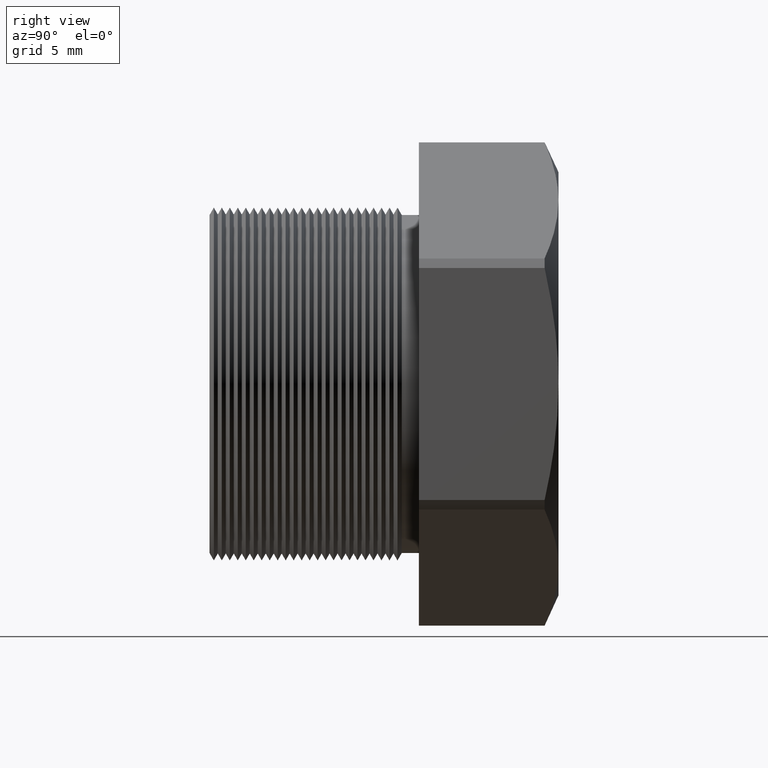
[diagram: clean part render]
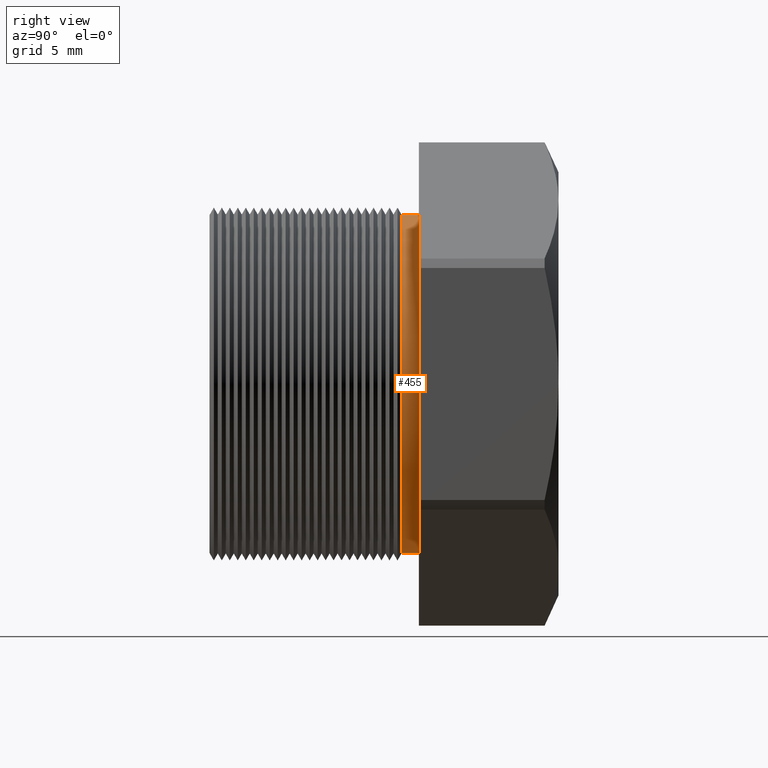
[diagram: same view with one face highlighted and labeled with its STEP entity id]
A machine part, right view. The second image highlights one B-rep face of the part: STEP entity #455.
In plain terms, the highlighted cylindrical surface (partial cylindrical patch) has radius 8.001 mm, axis along (-0, -1, -0).
Its self-contained STEP definition (entity closure, byte-faithful):
#377 = VERTEX_POINT ( 'NONE', #7280 ) ;
#378 = EDGE_CURVE ( 'NONE', #402, #377, #7278, .T. ) ;
#402 = VERTEX_POINT ( 'NONE', #7363 ) ;
#455 = ADVANCED_FACE ( 'NONE', ( #7452 ), #7444, .T. ) ;
#477 = EDGE_CURVE ( 'NONE', #483, #377, #7464, .T. ) ;
#478 = ORIENTED_EDGE ( 'NONE', *, *, #378, .F. ) ;
#479 = ORIENTED_EDGE ( 'NONE', *, *, #482, .F. ) ;
#481 = ORIENTED_EDGE ( 'NONE', *, *, #490, .T. ) ;
#482 = EDGE_CURVE ( 'NONE', #503, #402, #7525, .T. ) ;
#483 = VERTEX_POINT ( 'NONE', #7521 ) ;
#490 = EDGE_CURVE ( 'NONE', #503, #483, #7514, .T. ) ;
#503 = VERTEX_POINT ( 'NONE', #7537 ) ;
#504 = ORIENTED_EDGE ( 'NONE', *, *, #477, .T. ) ;
#1006 = EDGE_LOOP ( 'NONE', ( #481, #504, #478, #479 ) ) ;
#7274 = DIRECTION ( 'NONE',  ( 0.0000000000000000000, 0.0000000000000000000, -1.000000000000000000 ) ) ;
#7275 = DIRECTION ( 'NONE',  ( 0.0000000000000000000, -1.000000000000000000, 0.0000000000000000000 ) ) ;
#7276 = CARTESIAN_POINT ( 'NONE',  ( 0.0000000000000000000, 0.1155072448100089000, 0.0000000000000000000 ) ) ;
#7277 = AXIS2_PLACEMENT_3D ( 'NONE', #7276, #7275, #7274 ) ;
#7278 = CIRCLE ( 'NONE', #7277, 0.3150000000000000000 ) ;
#7280 = CARTESIAN_POINT ( 'NONE',  ( 3.857637417314162700E-017, 0.1155072448100089000, 0.3150000000000000000 ) ) ;
#7363 = CARTESIAN_POINT ( 'NONE',  ( 0.0000000000000000000, 0.1155072448100089000, -0.3150000000000000000 ) ) ;
#7441 = DIRECTION ( 'NONE',  ( 0.0000000000000000000, 0.0000000000000000000, -1.000000000000000000 ) ) ;
#7442 = DIRECTION ( 'NONE',  ( -0.0000000000000000000, -1.000000000000000000, -0.0000000000000000000 ) ) ;
#7443 = AXIS2_PLACEMENT_3D ( 'NONE', #7446, #7442, #7441 ) ;
#7444 = CYLINDRICAL_SURFACE ( 'NONE', #7443, 0.3150000000000000000 ) ;
#7446 = CARTESIAN_POINT ( 'NONE',  ( 0.0000000000000000000, 0.0000000000000000000, 0.0000000000000000000 ) ) ;
#7452 = FACE_OUTER_BOUND ( 'NONE', #1006, .T. ) ;
#7461 = DIRECTION ( 'NONE',  ( -0.0000000000000000000, -1.000000000000000000, -0.0000000000000000000 ) ) ;
#7462 = VECTOR ( 'NONE', #7461, 39.37007874015748100 ) ;
#7463 = CARTESIAN_POINT ( 'NONE',  ( 3.857637417314162700E-017, 0.0000000000000000000, 0.3150000000000000000 ) ) ;
#7464 = LINE ( 'NONE', #7463, #7462 ) ;
#7510 = DIRECTION ( 'NONE',  ( 0.0000000000000000000, 0.0000000000000000000, -1.000000000000000000 ) ) ;
#7511 = DIRECTION ( 'NONE',  ( -0.0000000000000000000, -1.000000000000000000, -0.0000000000000000000 ) ) ;
#7512 = CARTESIAN_POINT ( 'NONE',  ( 0.0000000000000000000, 0.1475548905829479600, 0.0000000000000000000 ) ) ;
#7513 = AXIS2_PLACEMENT_3D ( 'NONE', #7512, #7511, #7510 ) ;
#7514 = CIRCLE ( 'NONE', #7513, 0.3150000000000000000 ) ;
#7521 = CARTESIAN_POINT ( 'NONE',  ( 3.857637417314162700E-017, 0.1475548905829479600, 0.3150000000000000000 ) ) ;
#7522 = DIRECTION ( 'NONE',  ( -0.0000000000000000000, -1.000000000000000000, -0.0000000000000000000 ) ) ;
#7523 = VECTOR ( 'NONE', #7522, 39.37007874015748100 ) ;
#7524 = CARTESIAN_POINT ( 'NONE',  ( 0.0000000000000000000, 0.0000000000000000000, -0.3150000000000000000 ) ) ;
#7525 = LINE ( 'NONE', #7524, #7523 ) ;
#7537 = CARTESIAN_POINT ( 'NONE',  ( 0.0000000000000000000, 0.1475548905829479600, -0.3150000000000000000 ) ) ;